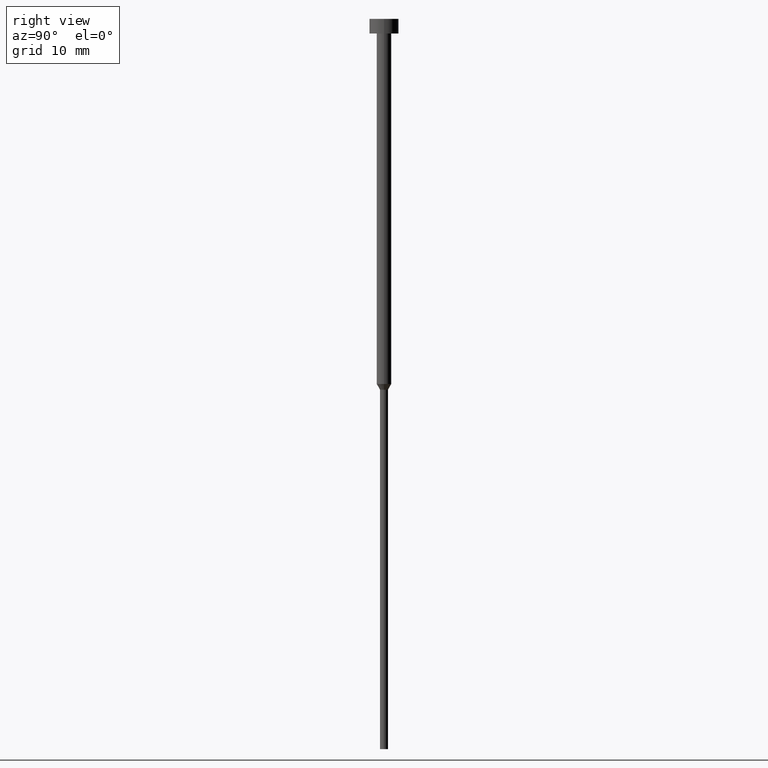
[diagram: clean part render]
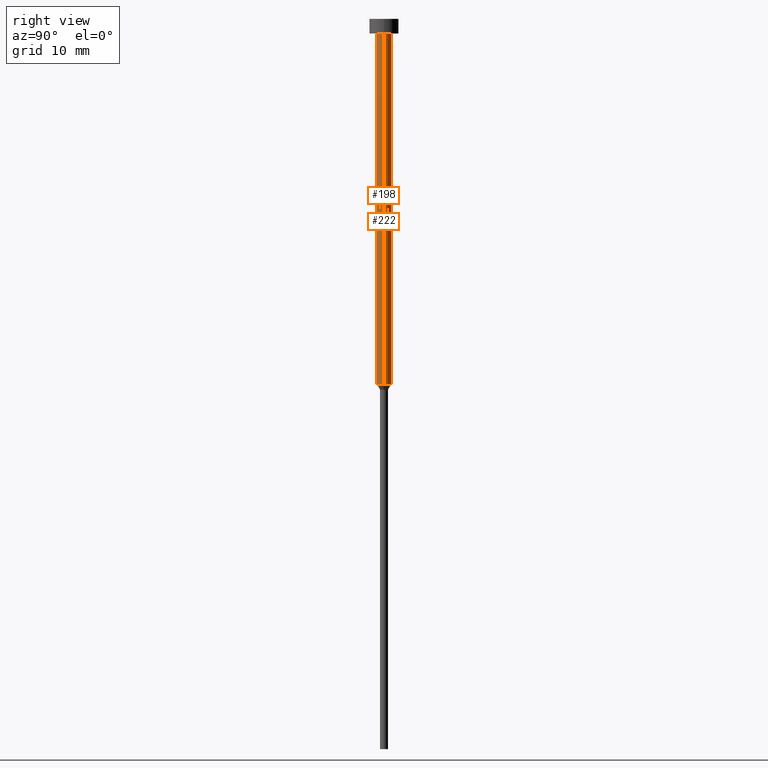
[diagram: same view with one multi-face feature highlighted, each face labeled with its STEP entity id]
A machine part, right view. The highlighted faces form ONE feature: a constant-radius fillet chain: 2 tangent blend faces with common blend radius 1 mm. The faces share edges in the B-rep.
Their STEP definitions:
[1] entity #222 (Cylinder):
#4 = LINE ( 'NONE', #281, #334 ) ;
#18 = CARTESIAN_POINT ( 'NONE',  ( 0.000000000000000000, 0.000000000000000000, 0.000000000000000000 ) ) ;
#20 = LINE ( 'NONE', #273, #157 ) ;
#22 = DIRECTION ( 'NONE',  ( -0.000000000000000000, -0.000000000000000000, 1.000000000000000000 ) ) ;
#33 = DIRECTION ( 'NONE',  ( -0.000000000000000000, -0.000000000000000000, 1.000000000000000000 ) ) ;
#35 = FACE_OUTER_BOUND ( 'NONE', #207, .T. ) ;
#54 = DIRECTION ( 'NONE',  ( 1.000000000000000000, 0.000000000000000000, 0.000000000000000000 ) ) ;
#81 = EDGE_CURVE ( 'NONE', #91, #351, #20, .T. ) ;
#84 = CARTESIAN_POINT ( 'NONE',  ( 0.000000000000000000, 0.000000000000000000, -2.000000000000000444 ) ) ;
#89 = ORIENTED_EDGE ( 'NONE', *, *, #81, .T. ) ;
#91 = VERTEX_POINT ( 'NONE', #302 ) ;
#113 = EDGE_CURVE ( 'NONE', #232, #284, #4, .T. ) ;
#119 = EDGE_CURVE ( 'NONE', #284, #351, #125, .T. ) ;
#125 = CIRCLE ( 'NONE', #133, 1.000000000000003553 ) ;
#126 = CARTESIAN_POINT ( 'NONE',  ( 0.000000000000000000, 0.000000000000000000, -50.00000000000000000 ) ) ;
#133 = AXIS2_PLACEMENT_3D ( 'NONE', #84, #304, #54 ) ;
#134 = CARTESIAN_POINT ( 'NONE',  ( 1.000000000000003109, 0.000000000000000000, -50.00000000000000000 ) ) ;
#149 = AXIS2_PLACEMENT_3D ( 'NONE', #126, #33, #344 ) ;
#157 = VECTOR ( 'NONE', #22, 1000.000000000000000 ) ;
#166 = DIRECTION ( 'NONE',  ( 1.000000000000000000, 0.000000000000000000, 0.000000000000000000 ) ) ;
#203 = ORIENTED_EDGE ( 'NONE', *, *, #337, .T. ) ;
#207 = EDGE_LOOP ( 'NONE', ( #203, #89, #311, #226 ) ) ;
#209 = CARTESIAN_POINT ( 'NONE',  ( -1.000000000000003553, 1.224646799147357398E-16, -2.000000000000000444 ) ) ;
#211 = AXIS2_PLACEMENT_3D ( 'NONE', #18, #244, #166 ) ;
#222 = ADVANCED_FACE ( 'NONE', ( #35 ), #298, .T. ) ;
#226 = ORIENTED_EDGE ( 'NONE', *, *, #113, .F. ) ;
#232 = VERTEX_POINT ( 'NONE', #134 ) ;
#244 = DIRECTION ( 'NONE',  ( -0.000000000000000000, -0.000000000000000000, 1.000000000000000000 ) ) ;
#252 = DIRECTION ( 'NONE',  ( -0.000000000000000000, -0.000000000000000000, 1.000000000000000000 ) ) ;
#273 = CARTESIAN_POINT ( 'NONE',  ( -1.000000000000003331, 1.224646799147357151E-16, 0.000000000000000000 ) ) ;
#279 = CARTESIAN_POINT ( 'NONE',  ( 1.000000000000003553, 0.000000000000000000, -2.000000000000000444 ) ) ;
#281 = CARTESIAN_POINT ( 'NONE',  ( 1.000000000000003331, 0.000000000000000000, 0.000000000000000000 ) ) ;
#284 = VERTEX_POINT ( 'NONE', #279 ) ;
#298 = CYLINDRICAL_SURFACE ( 'NONE', #211, 1.000000000000003331 ) ;
#302 = CARTESIAN_POINT ( 'NONE',  ( -1.000000000000003109, 1.224646799147356905E-16, -50.00000000000000000 ) ) ;
#304 = DIRECTION ( 'NONE',  ( -0.000000000000000000, -0.000000000000000000, 1.000000000000000000 ) ) ;
#311 = ORIENTED_EDGE ( 'NONE', *, *, #119, .F. ) ;
#322 = CIRCLE ( 'NONE', #149, 1.000000000000003109 ) ;
#334 = VECTOR ( 'NONE', #252, 1000.000000000000000 ) ;
#337 = EDGE_CURVE ( 'NONE', #232, #91, #322, .T. ) ;
#344 = DIRECTION ( 'NONE',  ( 1.000000000000000000, 0.000000000000000000, 0.000000000000000000 ) ) ;
#351 = VERTEX_POINT ( 'NONE', #209 ) ;
[2] entity #198 (Cylinder):
#4 = LINE ( 'NONE', #281, #334 ) ;
#9 = DIRECTION ( 'NONE',  ( -0.000000000000000000, -0.000000000000000000, 1.000000000000000000 ) ) ;
#15 = ORIENTED_EDGE ( 'NONE', *, *, #63, .T. ) ;
#20 = LINE ( 'NONE', #273, #157 ) ;
#22 = DIRECTION ( 'NONE',  ( -0.000000000000000000, -0.000000000000000000, 1.000000000000000000 ) ) ;
#40 = AXIS2_PLACEMENT_3D ( 'NONE', #310, #57, #180 ) ;
#41 = AXIS2_PLACEMENT_3D ( 'NONE', #323, #73, #136 ) ;
#52 = ORIENTED_EDGE ( 'NONE', *, *, #81, .F. ) ;
#57 = DIRECTION ( 'NONE',  ( -0.000000000000000000, -0.000000000000000000, 1.000000000000000000 ) ) ;
#63 = EDGE_CURVE ( 'NONE', #91, #232, #194, .T. ) ;
#72 = AXIS2_PLACEMENT_3D ( 'NONE', #267, #9, #123 ) ;
#73 = DIRECTION ( 'NONE',  ( -0.000000000000000000, -0.000000000000000000, 1.000000000000000000 ) ) ;
#81 = EDGE_CURVE ( 'NONE', #91, #351, #20, .T. ) ;
#91 = VERTEX_POINT ( 'NONE', #302 ) ;
#113 = EDGE_CURVE ( 'NONE', #232, #284, #4, .T. ) ;
#123 = DIRECTION ( 'NONE',  ( 1.000000000000000000, 0.000000000000000000, 0.000000000000000000 ) ) ;
#134 = CARTESIAN_POINT ( 'NONE',  ( 1.000000000000003109, 0.000000000000000000, -50.00000000000000000 ) ) ;
#135 = CIRCLE ( 'NONE', #72, 1.000000000000003553 ) ;
#136 = DIRECTION ( 'NONE',  ( 1.000000000000000000, 0.000000000000000000, 0.000000000000000000 ) ) ;
#157 = VECTOR ( 'NONE', #22, 1000.000000000000000 ) ;
#160 = EDGE_CURVE ( 'NONE', #351, #284, #135, .T. ) ;
#161 = FACE_OUTER_BOUND ( 'NONE', #257, .T. ) ;
#178 = ORIENTED_EDGE ( 'NONE', *, *, #113, .T. ) ;
#180 = DIRECTION ( 'NONE',  ( 1.000000000000000000, 0.000000000000000000, 0.000000000000000000 ) ) ;
#194 = CIRCLE ( 'NONE', #41, 1.000000000000003109 ) ;
#198 = ADVANCED_FACE ( 'NONE', ( #161 ), #341, .T. ) ;
#209 = CARTESIAN_POINT ( 'NONE',  ( -1.000000000000003553, 1.224646799147357398E-16, -2.000000000000000444 ) ) ;
#232 = VERTEX_POINT ( 'NONE', #134 ) ;
#252 = DIRECTION ( 'NONE',  ( -0.000000000000000000, -0.000000000000000000, 1.000000000000000000 ) ) ;
#257 = EDGE_LOOP ( 'NONE', ( #52, #15, #178, #296 ) ) ;
#267 = CARTESIAN_POINT ( 'NONE',  ( 0.000000000000000000, 0.000000000000000000, -2.000000000000000444 ) ) ;
#273 = CARTESIAN_POINT ( 'NONE',  ( -1.000000000000003331, 1.224646799147357151E-16, 0.000000000000000000 ) ) ;
#279 = CARTESIAN_POINT ( 'NONE',  ( 1.000000000000003553, 0.000000000000000000, -2.000000000000000444 ) ) ;
#281 = CARTESIAN_POINT ( 'NONE',  ( 1.000000000000003331, 0.000000000000000000, 0.000000000000000000 ) ) ;
#284 = VERTEX_POINT ( 'NONE', #279 ) ;
#296 = ORIENTED_EDGE ( 'NONE', *, *, #160, .F. ) ;
#302 = CARTESIAN_POINT ( 'NONE',  ( -1.000000000000003109, 1.224646799147356905E-16, -50.00000000000000000 ) ) ;
#310 = CARTESIAN_POINT ( 'NONE',  ( 0.000000000000000000, 0.000000000000000000, 0.000000000000000000 ) ) ;
#323 = CARTESIAN_POINT ( 'NONE',  ( 0.000000000000000000, 0.000000000000000000, -50.00000000000000000 ) ) ;
#334 = VECTOR ( 'NONE', #252, 1000.000000000000000 ) ;
#341 = CYLINDRICAL_SURFACE ( 'NONE', #40, 1.000000000000003331 ) ;
#351 = VERTEX_POINT ( 'NONE', #209 ) ;